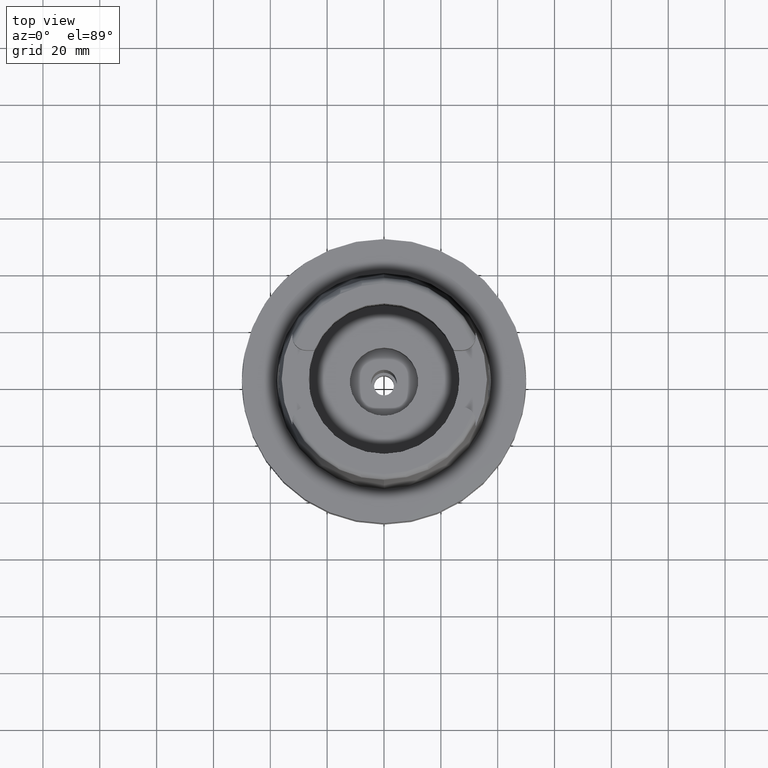
[diagram: clean part render]
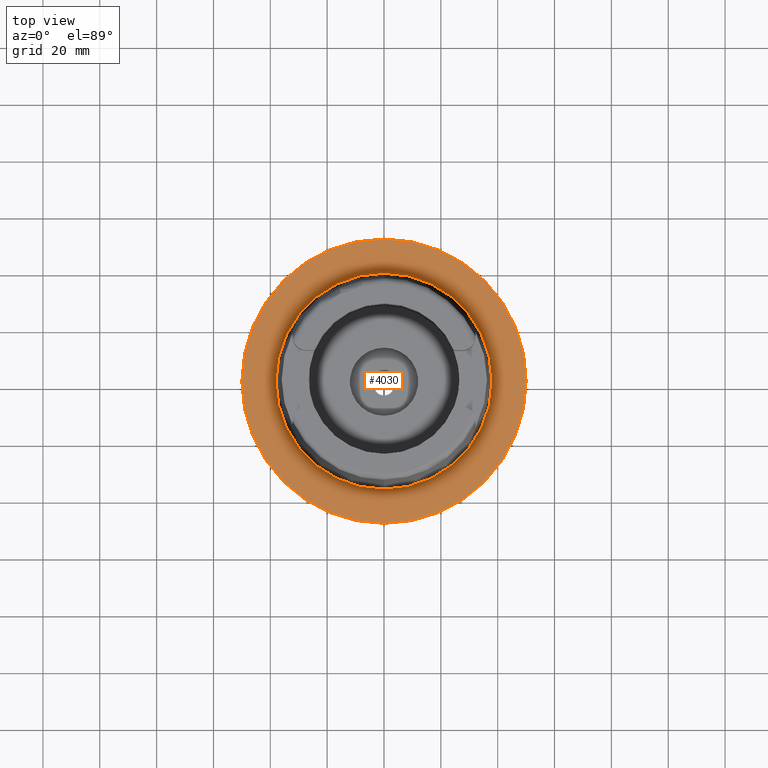
[diagram: same view with one face highlighted and labeled with its STEP entity id]
A machine part, top view. The second image highlights one B-rep face of the part: STEP entity #4030.
In plain terms, the highlighted planar face has unit normal (0, 0, 1).
Its self-contained STEP definition (entity closure, byte-faithful):
#1987=CARTESIAN_POINT('',(0.E0,0.E0,0.E0));
#1988=DIRECTION('',(0.E0,0.E0,-1.E0));
#1989=DIRECTION('',(0.E0,-1.E0,0.E0));
#1990=AXIS2_PLACEMENT_3D('',#1987,#1988,#1989);
#1995=CARTESIAN_POINT('',(0.E0,0.E0,0.E0));
#1996=DIRECTION('',(0.E0,0.E0,-1.E0));
#1997=DIRECTION('',(0.E0,1.E0,0.E0));
#1998=AXIS2_PLACEMENT_3D('',#1995,#1996,#1997);
#2003=CARTESIAN_POINT('',(0.E0,0.E0,1.023181539495E-12));
#2004=DIRECTION('',(0.E0,0.E0,1.E0));
#2005=DIRECTION('',(0.E0,-1.E0,0.E0));
#2006=AXIS2_PLACEMENT_3D('',#2003,#2004,#2005);
#2011=CARTESIAN_POINT('',(0.E0,0.E0,1.023181539495E-12));
#2012=DIRECTION('',(0.E0,0.E0,1.E0));
#2013=DIRECTION('',(0.E0,1.E0,0.E0));
#2014=AXIS2_PLACEMENT_3D('',#2011,#2012,#2013);
#2311=CARTESIAN_POINT('',(0.E0,-3.800001658252E1,6.821210263297E-13));
#2312=VERTEX_POINT('',#2311);
#2313=CARTESIAN_POINT('',(0.E0,3.800001658252E1,1.023181539495E-12));
#2314=VERTEX_POINT('',#2313);
#2556=CARTESIAN_POINT('',(0.E0,5.E1,0.E0));
#2557=VERTEX_POINT('',#2556);
#2558=CARTESIAN_POINT('',(0.E0,-5.E1,0.E0));
#2559=VERTEX_POINT('',#2558);
#4017=CARTESIAN_POINT('',(0.E0,0.E0,0.E0));
#4018=DIRECTION('',(0.E0,0.E0,1.E0));
#4019=DIRECTION('',(0.E0,1.E0,0.E0));
#4020=AXIS2_PLACEMENT_3D('',#4017,#4018,#4019);
#4021=PLANE('',#4020);
#4022=ORIENTED_EDGE('',*,*,#3782,.T.);
#4023=ORIENTED_EDGE('',*,*,#3891,.T.);
#4024=EDGE_LOOP('',(#4022,#4023));
#4025=FACE_OUTER_BOUND('',#4024,.F.);
#4026=ORIENTED_EDGE('',*,*,#2794,.T.);
#4027=ORIENTED_EDGE('',*,*,#2765,.T.);
#4028=EDGE_LOOP('',(#4026,#4027));
#4029=FACE_BOUND('',#4028,.F.);
#1991=CIRCLE('',#1990,5.E1);
#1999=CIRCLE('',#1998,5.E1);
#2007=CIRCLE('',#2006,3.800001658252E1);
#2015=CIRCLE('',#2014,3.800001658252E1);
#2765=EDGE_CURVE('',#2314,#2312,#2015,.T.);
#2794=EDGE_CURVE('',#2312,#2314,#2007,.T.);
#3782=EDGE_CURVE('',#2559,#2557,#1991,.T.);
#3891=EDGE_CURVE('',#2557,#2559,#1999,.T.);
#4030=ADVANCED_FACE('',(#4025,#4029),#4021,.T.);